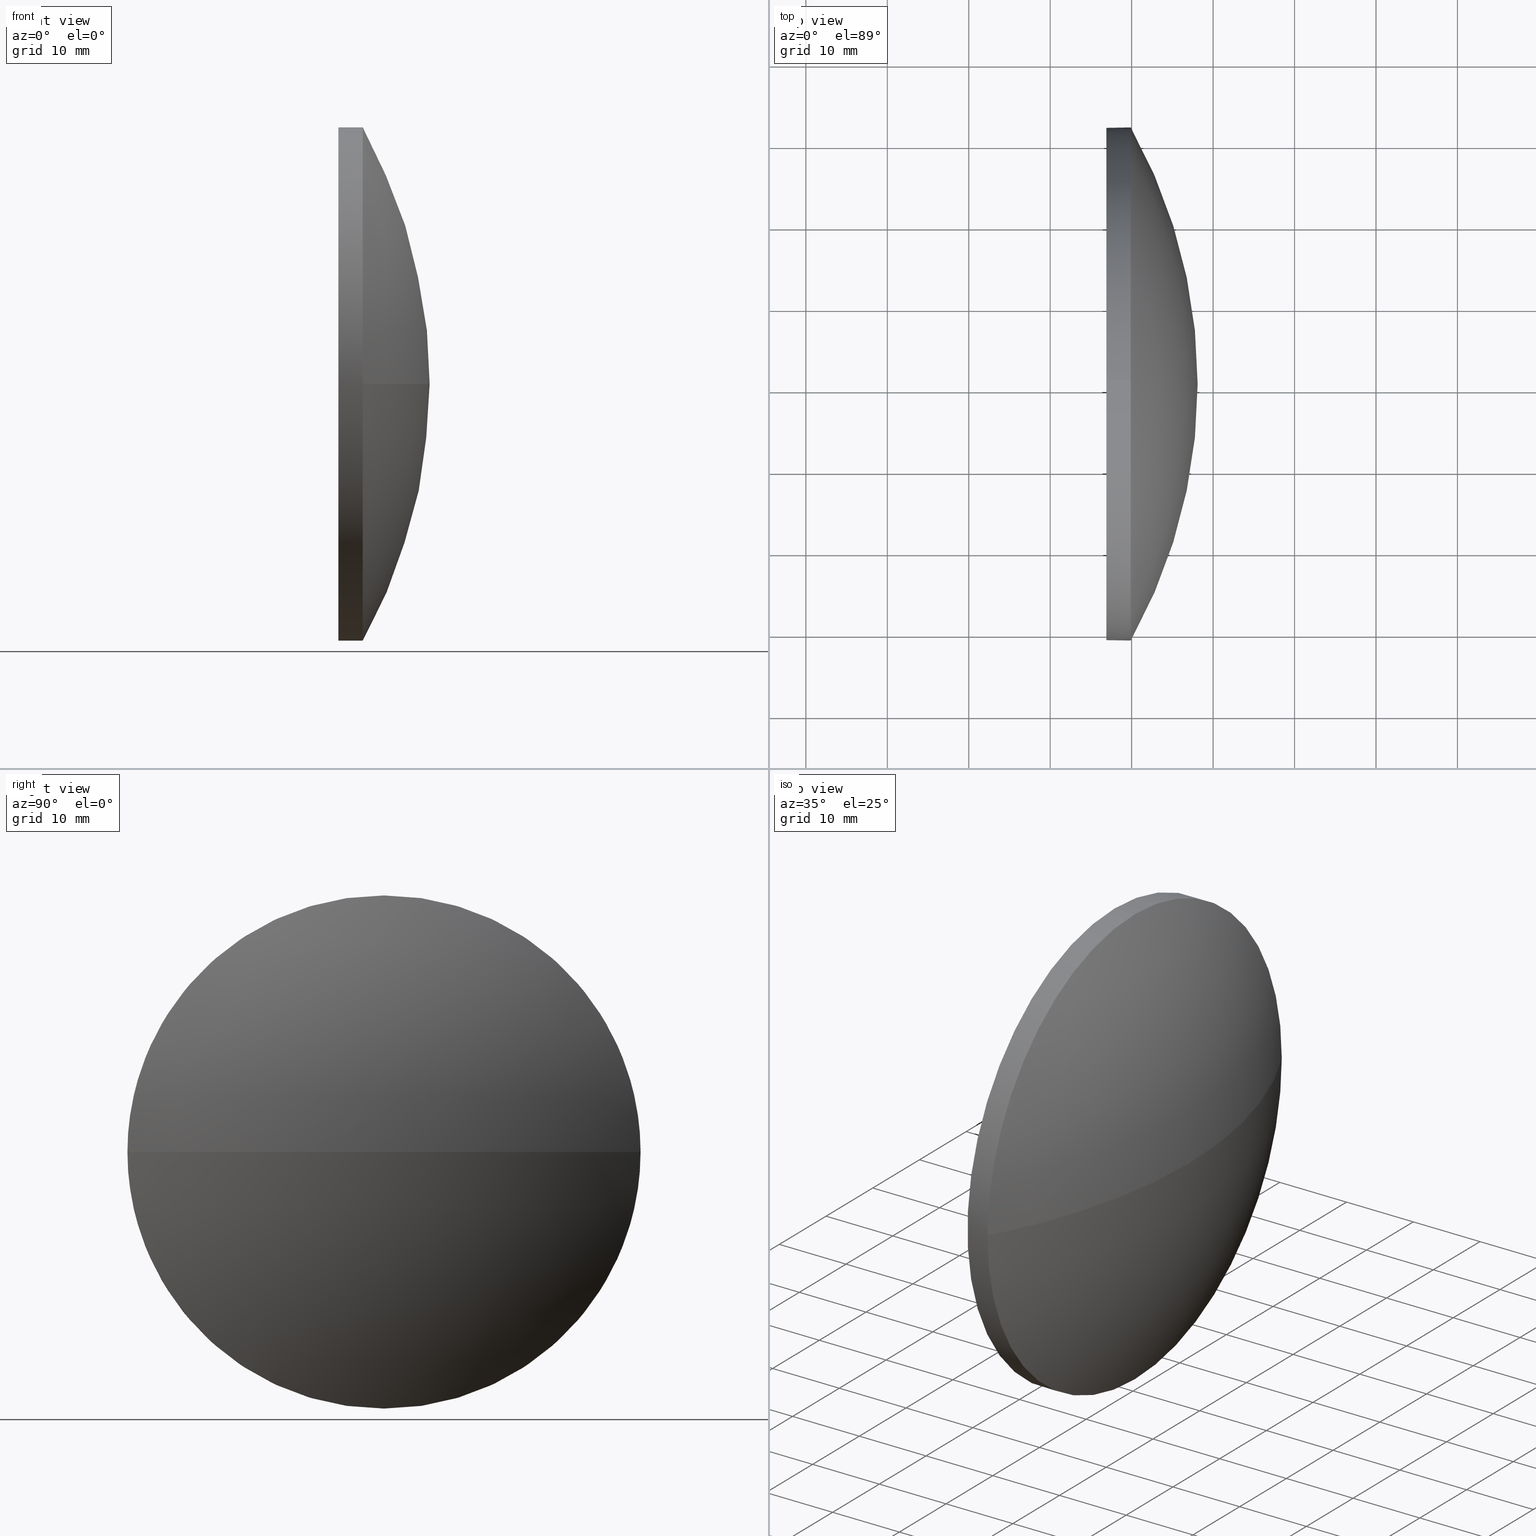
[diagram: canonical four-view strip — front | top / right | iso, engineering-drawing reading convention]
A machine part, canonical four-view strip (front | top / right | iso — engineering-drawing reading convention). The complete STEP part file that produces these views, byte-faithful:
ISO-10303-21;
HEADER;
FILE_DESCRIPTION (( 'STEP AP214' ),
    '1' );
FILE_NAME ('100245.STEP',
    '2019-05-28T08:55:41',
    ( '' ),
    ( '' ),
    'SwSTEP 2.0',
    'SolidWorks 2016',
    '' );
FILE_SCHEMA (( 'AUTOMOTIVE_DESIGN' ));
ENDSEC;

DATA;
#1 = CARTESIAN_POINT ( 'NONE',  ( 229.8933010013870400, 130.5185814569561000, 0.0000000000000000000 ) ) ;
#2 = PRESENTATION_LAYER_ASSIGNMENT (  '', '', ( #185 ) ) ;
#3 = ORIENTED_EDGE ( 'NONE', *, *, #155, .T. ) ;
#4 = CYLINDRICAL_SURFACE ( 'NONE', #89, 31.50000000000000000 ) ;
#5 = APPLICATION_CONTEXT ( 'automotive_design' ) ;
#6 = DIRECTION ( 'NONE',  ( 0.0000000000000000000, 0.0000000000000000000, 1.000000000000000000 ) ) ;
#7 =( NAMED_UNIT ( * ) PLANE_ANGLE_UNIT ( ) SI_UNIT ( $, .RADIAN. ) );
#8 = DIRECTION ( 'NONE',  ( -0.0000000000000000000, 0.0000000000000000000, -1.000000000000000000 ) ) ;
#9 = FILL_AREA_STYLE ('',( #111 ) ) ;
#10 = DIRECTION ( 'NONE',  ( 0.0000000000000000000, 1.000000000000000000, 0.0000000000000000000 ) ) ;
#11 = VERTEX_POINT ( 'NONE', #133 ) ;
#12 = AXIS2_PLACEMENT_3D ( 'NONE', #1, #46, #6 ) ;
#13 = VECTOR ( 'NONE', #95, 1000.000000000000000 ) ;
#14 = FACE_OUTER_BOUND ( 'NONE', #41, .T. ) ;
#15 = SPHERICAL_SURFACE ( 'NONE', #53, 64.53435444579771700 ) ;
#16 = MECHANICAL_DESIGN_GEOMETRIC_PRESENTATION_REPRESENTATION (  '', ( #185 ), #26 ) ;
#17 = CIRCLE ( 'NONE', #160, 31.50000000000000000 ) ;
#18 = PRODUCT ( '100245', '100245', '', ( #118 ) ) ;
#19 = VERTEX_POINT ( 'NONE', #174 ) ;
#20 = LINE ( 'NONE', #83, #129 ) ;
#21 = EDGE_CURVE ( 'NONE', #138, #169, #25, .T. ) ;
#22 = DIRECTION ( 'NONE',  ( -1.000000000000000000, -0.0000000000000000000, -0.0000000000000000000 ) ) ;
#23 = CARTESIAN_POINT ( 'NONE',  ( 218.1236667371545400, 130.5185814569561000, 0.0000000000000000000 ) ) ;
#24 = SURFACE_STYLE_USAGE ( .BOTH. , #54 ) ;
#25 = CIRCLE ( 'NONE', #85, 31.50000000000000000 ) ;
#26 =( GEOMETRIC_REPRESENTATION_CONTEXT ( 3 ) GLOBAL_UNCERTAINTY_ASSIGNED_CONTEXT ( ( #167 ) ) GLOBAL_UNIT_ASSIGNED_CONTEXT ( ( #34, #161, #65 ) ) REPRESENTATION_CONTEXT ( 'NONE', 'WORKASPACE' ) );
#27 = ORIENTED_EDGE ( 'NONE', *, *, #92, .F. ) ;
#28 = ADVANCED_FACE ( 'NONE', ( #63 ), #15, .T. ) ;
#29 = STYLED_ITEM ( 'NONE', ( #153 ), #173 ) ;
#30 = EDGE_LOOP ( 'NONE', ( #86, #181 ) ) ;
#31 = CARTESIAN_POINT ( 'NONE',  ( 226.8933010013870400, 130.5185814569561000, 0.0000000000000000000 ) ) ;
#32 = ORIENTED_EDGE ( 'NONE', *, *, #79, .T. ) ;
#33 = DIRECTION ( 'NONE',  ( -1.000000000000000000, -0.0000000000000000000, -0.0000000000000000000 ) ) ;
#34 =( LENGTH_UNIT ( ) NAMED_UNIT ( * ) SI_UNIT ( .MILLI., .METRE. ) );
#35 = DIRECTION ( 'NONE',  ( 0.0000000000000000000, 0.0000000000000000000, 1.000000000000000000 ) ) ;
#36 =( NAMED_UNIT ( * ) PLANE_ANGLE_UNIT ( ) SI_UNIT ( $, .RADIAN. ) );
#37 = COLOUR_RGB ( '',1.000000000000000000, 1.000000000000000000, 1.000000000000000000 ) ;
#38 = PRESENTATION_LAYER_ASSIGNMENT (  '', '', ( #29 ) ) ;
#39 = ORIENTED_EDGE ( 'NONE', *, *, #61, .F. ) ;
#40 = CIRCLE ( 'NONE', #121, 64.53435444579771700 ) ;
#41 = EDGE_LOOP ( 'NONE', ( #102, #122, #27, #116, #108 ) ) ;
#42 = SPHERICAL_SURFACE ( 'NONE', #168, 64.53435444579771700 ) ;
#43 = AXIS2_PLACEMENT_3D ( 'NONE', #23, #98, #35 ) ;
#44 = SHAPE_DEFINITION_REPRESENTATION ( #150, #76 ) ;
#45 = ORIENTED_EDGE ( 'NONE', *, *, #178, .F. ) ;
#46 = DIRECTION ( 'NONE',  ( -1.000000000000000000, -0.0000000000000000000, -0.0000000000000000000 ) ) ;
#47 = PLANE ( 'NONE',  #56 ) ;
#48 =( NAMED_UNIT ( * ) SI_UNIT ( $, .STERADIAN. ) SOLID_ANGLE_UNIT ( ) );
#49 = ORIENTED_EDGE ( 'NONE', *, *, #117, .F. ) ;
#50 = CYLINDRICAL_SURFACE ( 'NONE', #43, 31.50000000000000000 ) ;
#51 = APPLICATION_PROTOCOL_DEFINITION ( 'draft international standard', 'automotive_design', 1998, #158 ) ;
#52 = EDGE_LOOP ( 'NONE', ( #49, #151, #55, #156 ) ) ;
#53 = AXIS2_PLACEMENT_3D ( 'NONE', #131, #77, #80 ) ;
#54 = SURFACE_SIDE_STYLE ('',( #62 ) ) ;
#55 = ORIENTED_EDGE ( 'NONE', *, *, #21, .F. ) ;
#56 = AXIS2_PLACEMENT_3D ( 'NONE', #144, #104, #159 ) ;
#57 = UNCERTAINTY_MEASURE_WITH_UNIT (LENGTH_MEASURE( 1.000000000000000100E-005 ), #119, 'distance_accuracy_value', 'NONE');
#58 = ORIENTED_EDGE ( 'NONE', *, *, #101, .F. ) ;
#59 = PRODUCT_DEFINITION_CONTEXT ( 'detailed design', #158, 'design' ) ;
#60 = CIRCLE ( 'NONE', #140, 31.50000000000000000 ) ;
#61 = EDGE_CURVE ( 'NONE', #138, #73, #176, .T. ) ;
#62 = SURFACE_STYLE_FILL_AREA ( #9 ) ;
#63 = FACE_OUTER_BOUND ( 'NONE', #52, .T. ) ;
#64 = DIRECTION ( 'NONE',  ( 0.0000000000000000000, 0.0000000000000000000, 1.000000000000000000 ) ) ;
#65 =( NAMED_UNIT ( * ) SI_UNIT ( $, .STERADIAN. ) SOLID_ANGLE_UNIT ( ) );
#66 = DIRECTION ( 'NONE',  ( 0.0000000000000000000, 1.000000000000000000, 1.224646799147353200E-016 ) ) ;
#67 = CARTESIAN_POINT ( 'NONE',  ( 229.8933010013870400, 162.0185814569560700, 0.0000000000000000000 ) ) ;
#68 = DIRECTION ( 'NONE',  ( 1.000000000000000000, 0.0000000000000000000, 0.0000000000000000000 ) ) ;
#69 = CARTESIAN_POINT ( 'NONE',  ( 218.1236667371545400, 130.5185814569561000, 0.0000000000000000000 ) ) ;
#70 = DIRECTION ( 'NONE',  ( -1.000000000000000000, -0.0000000000000000000, -0.0000000000000000000 ) ) ;
#71 = DIRECTION ( 'NONE',  ( -1.000000000000000000, -0.0000000000000000000, -0.0000000000000000000 ) ) ;
#72 = VERTEX_POINT ( 'NONE', #128 ) ;
#73 = VERTEX_POINT ( 'NONE', #114 ) ;
#74 = AXIS2_PLACEMENT_3D ( 'NONE', #162, #179, #96 ) ;
#75 = VERTEX_POINT ( 'NONE', #67 ) ;
#76 = ADVANCED_BREP_SHAPE_REPRESENTATION ( '100245', ( #173, #127 ), #132 ) ;
#77 = DIRECTION ( 'NONE',  ( -0.0000000000000000000, 0.0000000000000000000, -1.000000000000000000 ) ) ;
#78 = DIRECTION ( 'NONE',  ( 0.0000000000000000000, 0.0000000000000000000, 1.000000000000000000 ) ) ;
#79 = EDGE_CURVE ( 'NONE', #169, #11, #184, .T. ) ;
#80 = DIRECTION ( 'NONE',  ( 0.0000000000000000000, 1.000000000000000000, 0.0000000000000000000 ) ) ;
#81 =( LENGTH_UNIT ( ) NAMED_UNIT ( * ) SI_UNIT ( .MILLI., .METRE. ) );
#82 = CARTESIAN_POINT ( 'NONE',  ( 229.8933010013870400, 99.01858145695611300, -3.857637417314160300E-015 ) ) ;
#83 = CARTESIAN_POINT ( 'NONE',  ( 218.1236667371545400, 130.5185814569561000, 31.50000000000000000 ) ) ;
#84 = FACE_OUTER_BOUND ( 'NONE', #186, .T. ) ;
#85 = AXIS2_PLACEMENT_3D ( 'NONE', #145, #33, #64 ) ;
#86 = ORIENTED_EDGE ( 'NONE', *, *, #92, .T. ) ;
#87 = FACE_OUTER_BOUND ( 'NONE', #90, .T. ) ;
#88 = ADVANCED_FACE ( 'NONE', ( #157 ), #47, .F. ) ;
#89 = AXIS2_PLACEMENT_3D ( 'NONE', #69, #164, #134 ) ;
#90 = EDGE_LOOP ( 'NONE', ( #45, #113, #58, #120 ) ) ;
#91 = SURFACE_STYLE_FILL_AREA ( #135 ) ;
#92 = EDGE_CURVE ( 'NONE', #19, #73, #172, .T. ) ;
#93 = ORIENTED_EDGE ( 'NONE', *, *, #107, .F. ) ;
#94 = APPLICATION_PROTOCOL_DEFINITION ( 'draft international standard', 'automotive_design', 1998, #5 ) ;
#95 = DIRECTION ( 'NONE',  ( -1.000000000000000000, -0.0000000000000000000, -0.0000000000000000000 ) ) ;
#96 = DIRECTION ( 'NONE',  ( 0.0000000000000000000, 0.0000000000000000000, 1.000000000000000000 ) ) ;
#97 = CARTESIAN_POINT ( 'NONE',  ( 173.5689465555893200, 130.5185814569561000, 0.0000000000000000000 ) ) ;
#98 = DIRECTION ( 'NONE',  ( -1.000000000000000000, -0.0000000000000000000, -0.0000000000000000000 ) ) ;
#99 = CIRCLE ( 'NONE', #74, 31.50000000000000000 ) ;
#100 =( GEOMETRIC_REPRESENTATION_CONTEXT ( 3 ) GLOBAL_UNCERTAINTY_ASSIGNED_CONTEXT ( ( #57 ) ) GLOBAL_UNIT_ASSIGNED_CONTEXT ( ( #119, #36, #163 ) ) REPRESENTATION_CONTEXT ( 'NONE', 'WORKASPACE' ) );
#101 = EDGE_CURVE ( 'NONE', #11, #75, #99, .T. ) ;
#102 = ORIENTED_EDGE ( 'NONE', *, *, #171, .T. ) ;
#103 = PRODUCT_RELATED_PRODUCT_CATEGORY ( 'part', '', ( #18 ) ) ;
#104 = DIRECTION ( 'NONE',  ( 1.000000000000000000, 0.0000000000000000000, 0.0000000000000000000 ) ) ;
#105 = CARTESIAN_POINT ( 'NONE',  ( 173.5689465555893200, 130.5185814569561000, 0.0000000000000000000 ) ) ;
#106 = FILL_AREA_STYLE_COLOUR ( '', #37 ) ;
#107 = EDGE_CURVE ( 'NONE', #73, #19, #60, .T. ) ;
#108 = ORIENTED_EDGE ( 'NONE', *, *, #101, .T. ) ;
#109 = DIRECTION ( 'NONE',  ( 1.000000000000000000, 0.0000000000000000000, 0.0000000000000000000 ) ) ;
#110 = DIRECTION ( 'NONE',  ( -0.0000000000000000000, 0.0000000000000000000, 1.000000000000000000 ) ) ;
#111 = FILL_AREA_STYLE_COLOUR ( '', #170 ) ;
#112 = PRESENTATION_STYLE_ASSIGNMENT (( #130 ) ) ;
#113 = ORIENTED_EDGE ( 'NONE', *, *, #117, .T. ) ;
#114 = CARTESIAN_POINT ( 'NONE',  ( 226.8933010013870400, 130.5185814569561000, -31.50000000000000000 ) ) ;
#115 = DIRECTION ( 'NONE',  ( 0.0000000000000000000, 0.0000000000000000000, 1.000000000000000000 ) ) ;
#116 = ORIENTED_EDGE ( 'NONE', *, *, #155, .F. ) ;
#117 = EDGE_CURVE ( 'NONE', #72, #75, #143, .T. ) ;
#118 = PRODUCT_CONTEXT ( 'NONE', #5, 'mechanical' ) ;
#119 =( LENGTH_UNIT ( ) NAMED_UNIT ( * ) SI_UNIT ( .MILLI., .METRE. ) );
#120 = ORIENTED_EDGE ( 'NONE', *, *, #79, .F. ) ;
#121 = AXIS2_PLACEMENT_3D ( 'NONE', #105, #180, #66 ) ;
#122 = ORIENTED_EDGE ( 'NONE', *, *, #61, .T. ) ;
#123 = UNCERTAINTY_MEASURE_WITH_UNIT (LENGTH_MEASURE( 1.000000000000000100E-005 ), #81, 'distance_accuracy_value', 'NONE');
#124 = ADVANCED_FACE ( 'NONE', ( #87 ), #42, .T. ) ;
#125 = AXIS2_PLACEMENT_3D ( 'NONE', #31, #22, #115 ) ;
#126 = CLOSED_SHELL ( 'NONE', ( #152, #28, #124, #139, #88 ) ) ;
#127 = AXIS2_PLACEMENT_3D ( 'NONE', #148, #78, #68 ) ;
#128 = CARTESIAN_POINT ( 'NONE',  ( 238.1033010013870500, 130.5185814569561000, 0.0000000000000000000 ) ) ;
#129 = VECTOR ( 'NONE', #137, 1000.000000000000000 ) ;
#130 = SURFACE_STYLE_USAGE ( .BOTH. , #183 ) ;
#131 = CARTESIAN_POINT ( 'NONE',  ( 173.5689465555893200, 130.5185814569561000, 0.0000000000000000000 ) ) ;
#132 =( GEOMETRIC_REPRESENTATION_CONTEXT ( 3 ) GLOBAL_UNCERTAINTY_ASSIGNED_CONTEXT ( ( #123 ) ) GLOBAL_UNIT_ASSIGNED_CONTEXT ( ( #81, #7, #48 ) ) REPRESENTATION_CONTEXT ( 'NONE', 'WORKASPACE' ) );
#133 = CARTESIAN_POINT ( 'NONE',  ( 229.8933010013870400, 130.5185814569561000, 31.50000000000000000 ) ) ;
#134 = DIRECTION ( 'NONE',  ( 0.0000000000000000000, 0.0000000000000000000, 1.000000000000000000 ) ) ;
#135 = FILL_AREA_STYLE ('',( #106 ) ) ;
#136 = CARTESIAN_POINT ( 'NONE',  ( 226.8933010013870400, 130.5185814569561000, 0.0000000000000000000 ) ) ;
#137 = DIRECTION ( 'NONE',  ( -1.000000000000000000, -0.0000000000000000000, -0.0000000000000000000 ) ) ;
#138 = VERTEX_POINT ( 'NONE', #177 ) ;
#139 = ADVANCED_FACE ( 'NONE', ( #84 ), #50, .T. ) ;
#140 = AXIS2_PLACEMENT_3D ( 'NONE', #136, #71, #166 ) ;
#141 = ORIENTED_EDGE ( 'NONE', *, *, #21, .T. ) ;
#142 = PRODUCT_DEFINITION ( 'δ֪', '', #149, #59 ) ;
#143 = CIRCLE ( 'NONE', #154, 64.53435444579771700 ) ;
#144 = CARTESIAN_POINT ( 'NONE',  ( 226.8933010013870400, 130.5185814569561000, 0.0000000000000000000 ) ) ;
#145 = CARTESIAN_POINT ( 'NONE',  ( 229.8933010013870400, 130.5185814569561000, 0.0000000000000000000 ) ) ;
#146 = MECHANICAL_DESIGN_GEOMETRIC_PRESENTATION_REPRESENTATION (  '', ( #29 ), #100 ) ;
#147 = CARTESIAN_POINT ( 'NONE',  ( 229.8933010013870400, 130.5185814569561000, 0.0000000000000000000 ) ) ;
#148 = CARTESIAN_POINT ( 'NONE',  ( 0.0000000000000000000, 0.0000000000000000000, 0.0000000000000000000 ) ) ;
#149 = PRODUCT_DEFINITION_FORMATION_WITH_SPECIFIED_SOURCE ( '�κ�', '', #18, .NOT_KNOWN. ) ;
#150 = PRODUCT_DEFINITION_SHAPE ( 'NONE', 'NONE',  #142 ) ;
#151 = ORIENTED_EDGE ( 'NONE', *, *, #178, .T. ) ;
#152 = ADVANCED_FACE ( 'NONE', ( #14 ), #4, .T. ) ;
#153 = PRESENTATION_STYLE_ASSIGNMENT (( #24 ) ) ;
#154 = AXIS2_PLACEMENT_3D ( 'NONE', #182, #110, #109 ) ;
#155 = EDGE_CURVE ( 'NONE', #11, #19, #20, .T. ) ;
#156 = ORIENTED_EDGE ( 'NONE', *, *, #171, .F. ) ;
#157 = FACE_OUTER_BOUND ( 'NONE', #30, .T. ) ;
#158 = APPLICATION_CONTEXT ( 'automotive_design' ) ;
#159 = DIRECTION ( 'NONE',  ( 0.0000000000000000000, 0.0000000000000000000, -1.000000000000000000 ) ) ;
#160 = AXIS2_PLACEMENT_3D ( 'NONE', #147, #70, #165 ) ;
#161 =( NAMED_UNIT ( * ) PLANE_ANGLE_UNIT ( ) SI_UNIT ( $, .RADIAN. ) );
#162 = CARTESIAN_POINT ( 'NONE',  ( 229.8933010013870400, 130.5185814569561000, 0.0000000000000000000 ) ) ;
#163 =( NAMED_UNIT ( * ) SI_UNIT ( $, .STERADIAN. ) SOLID_ANGLE_UNIT ( ) );
#164 = DIRECTION ( 'NONE',  ( -1.000000000000000000, -0.0000000000000000000, -0.0000000000000000000 ) ) ;
#165 = DIRECTION ( 'NONE',  ( 0.0000000000000000000, 0.0000000000000000000, 1.000000000000000000 ) ) ;
#166 = DIRECTION ( 'NONE',  ( 0.0000000000000000000, 0.0000000000000000000, 1.000000000000000000 ) ) ;
#167 = UNCERTAINTY_MEASURE_WITH_UNIT (LENGTH_MEASURE( 1.000000000000000100E-005 ), #34, 'distance_accuracy_value', 'NONE');
#168 = AXIS2_PLACEMENT_3D ( 'NONE', #97, #8, #10 ) ;
#169 = VERTEX_POINT ( 'NONE', #82 ) ;
#170 = COLOUR_RGB ( '',1.000000000000000000, 1.000000000000000000, 1.000000000000000000 ) ;
#171 = EDGE_CURVE ( 'NONE', #75, #138, #17, .T. ) ;
#172 = CIRCLE ( 'NONE', #125, 31.50000000000000000 ) ;
#173 = MANIFOLD_SOLID_BREP ( '��ת1', #126 ) ;
#174 = CARTESIAN_POINT ( 'NONE',  ( 226.8933010013870400, 130.5185814569561000, 31.50000000000000000 ) ) ;
#175 = CARTESIAN_POINT ( 'NONE',  ( 218.1236667371545400, 130.5185814569561000, -31.50000000000000000 ) ) ;
#176 = LINE ( 'NONE', #175, #13 ) ;
#177 = CARTESIAN_POINT ( 'NONE',  ( 229.8933010013870400, 130.5185814569561000, -31.50000000000000000 ) ) ;
#178 = EDGE_CURVE ( 'NONE', #72, #169, #40, .T. ) ;
#179 = DIRECTION ( 'NONE',  ( -1.000000000000000000, -0.0000000000000000000, -0.0000000000000000000 ) ) ;
#180 = DIRECTION ( 'NONE',  ( 0.0000000000000000000, 1.224646799147353200E-016, -1.000000000000000000 ) ) ;
#181 = ORIENTED_EDGE ( 'NONE', *, *, #107, .T. ) ;
#182 = CARTESIAN_POINT ( 'NONE',  ( 173.5689465555893200, 130.5185814569561000, 0.0000000000000000000 ) ) ;
#183 = SURFACE_SIDE_STYLE ('',( #91 ) ) ;
#184 = CIRCLE ( 'NONE', #12, 31.50000000000000000 ) ;
#185 = STYLED_ITEM ( 'NONE', ( #112 ), #76 ) ;
#186 = EDGE_LOOP ( 'NONE', ( #39, #141, #32, #3, #93 ) ) ;
ENDSEC;
END-ISO-10303-21;
